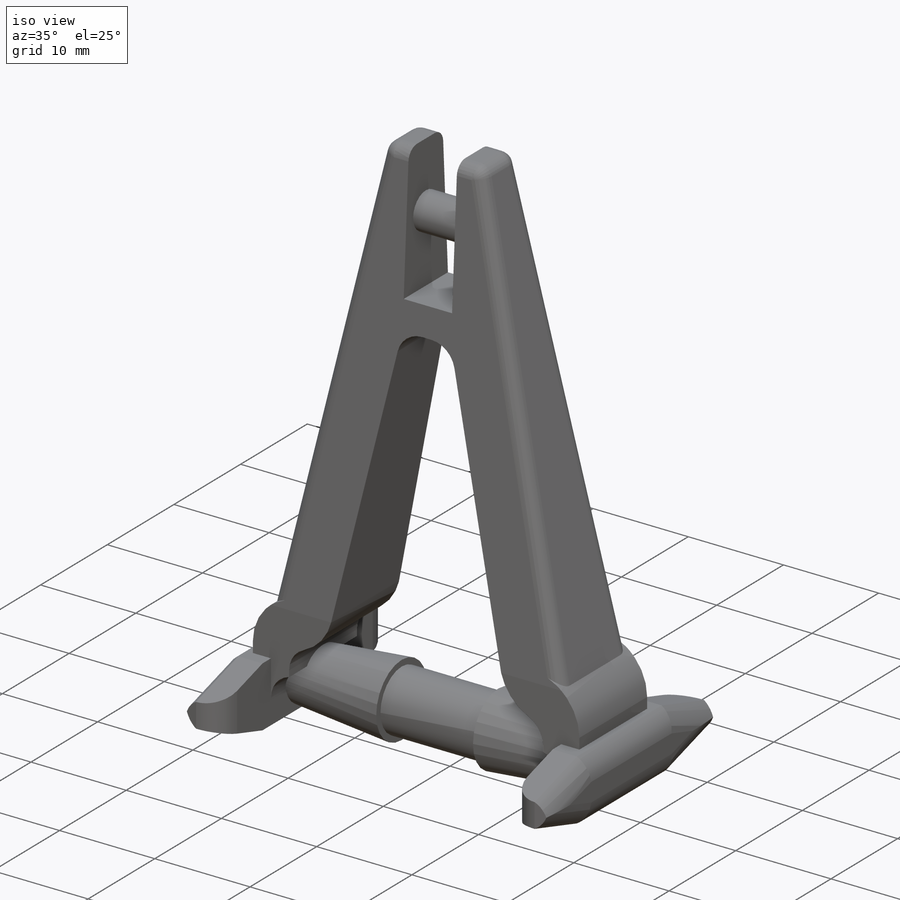
[diagram: iso view]
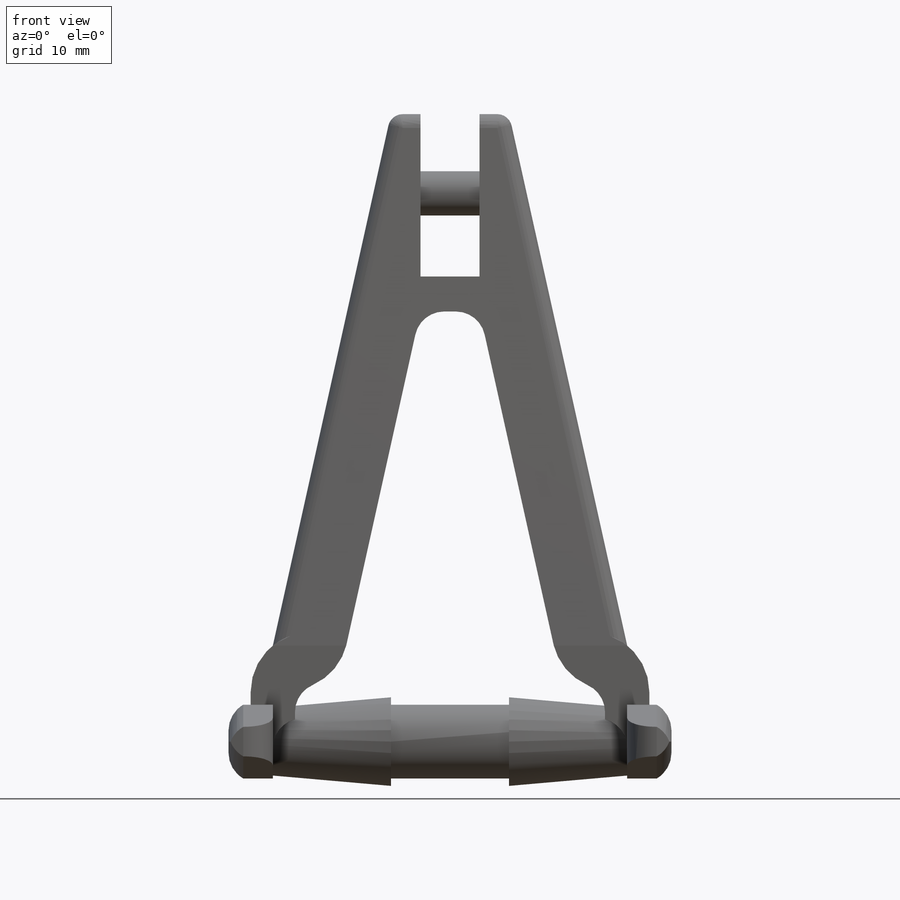
[diagram: front view]
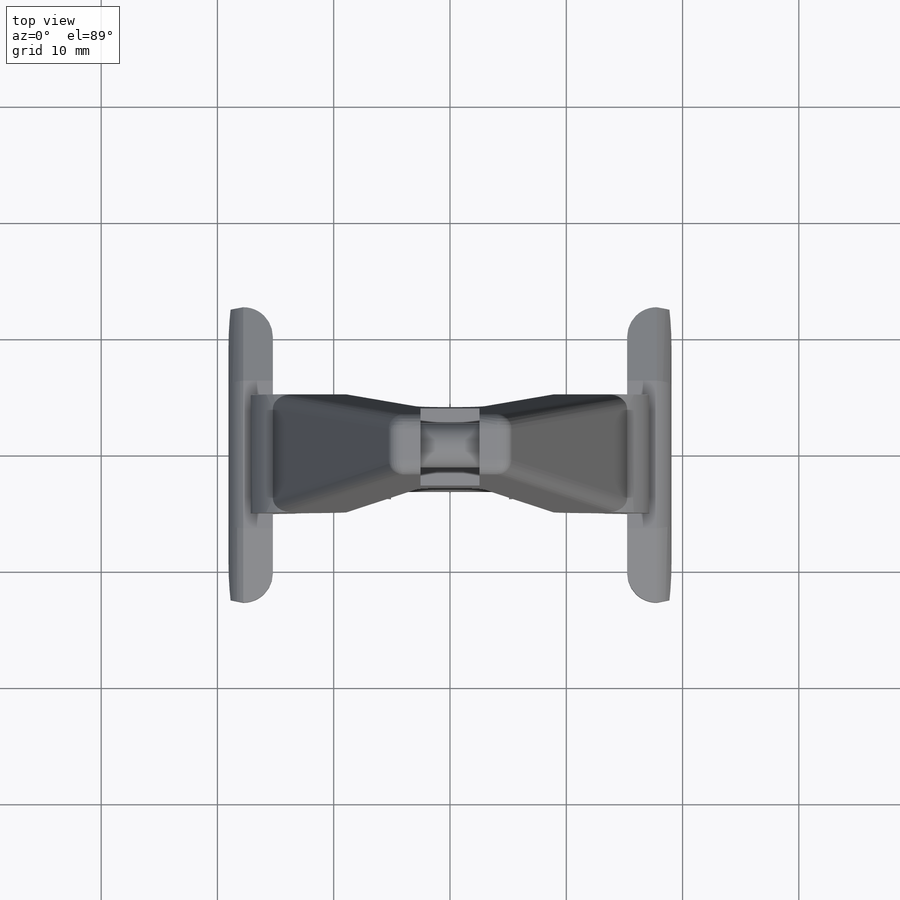
[diagram: top view]
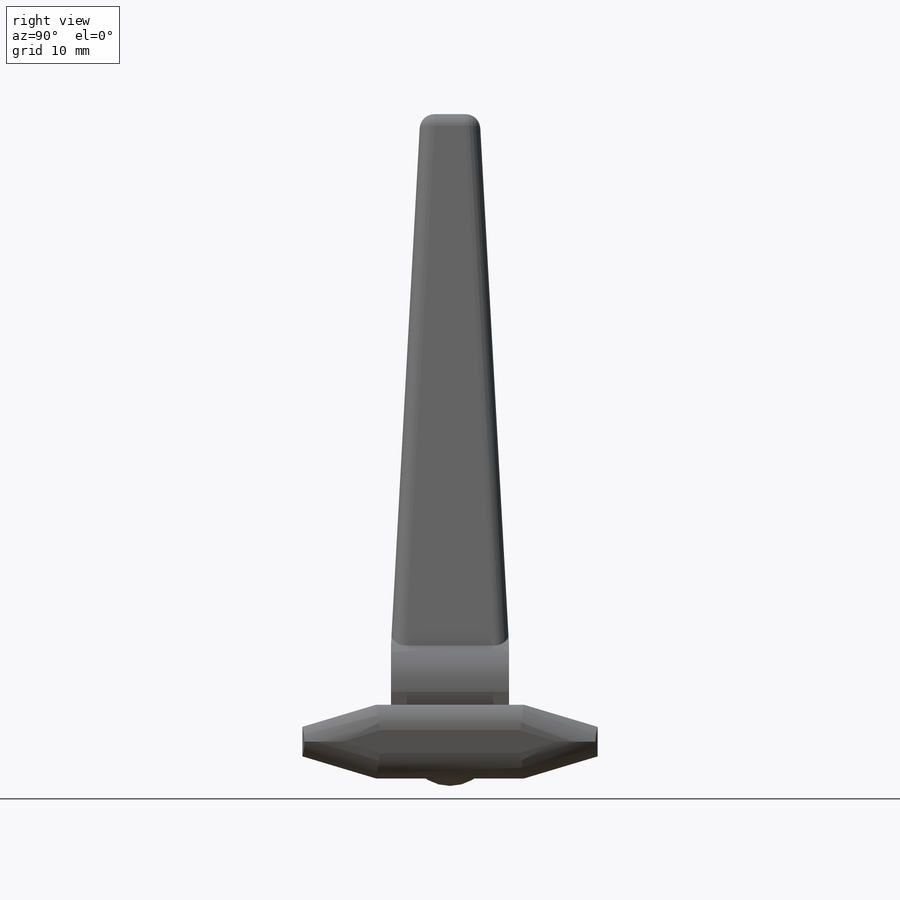
[diagram: right view]
SOLIDWORKS PART (.sldprt)
format: sldprt  version: not decoded by parser v0  size: 559,616 bytes
history: native  units: mm
features: sketch x8, fillet x8, extrude x6, cut_extrude x2, material x1, mirror x1, plane x1 (+13 scaffold rows collapsed)
feature tree (40):
  scaffold x13  (default folders/planes/origin — collapsed)
  material  "Material <not specified>"
  sketch  "Sketch1"  dims[D1=6.35mm]
  extrude  "Boss-Extrude1"  Depth=10.16mm
  sketch  "Sketch2"  dims[D1=7.62mm]
  extrude  "Boss-Extrude2"  Depth=12.7mm
  sketch  "Sketch3"  dims[D1=1.27mm D2=25.4mm D3=1.905mm D4=12.7mm]
  extrude  "Boss-Extrude3"  Depth=1.27mm
  fillet  "Fillet1"  Radius=2.54mm
  mirror  "Mirror1"
  fillet  "Fillet2"  Radius=2.54mm
  sketch  "Sketch4"  dims[D1=10.16mm D2=3.81mm]
  extrude  "Boss-Extrude4"  Depth=1.27mm
  sketch  "Sketch5"  dims[D1=10.16mm D2=5.08mm D3=45.72mm]
  extrude  "Boss-Extrude5"  Depth=10.16mm
  fillet  "Fillet3"  Radius=5.08mm
  fillet  "Fillet4"  Radius=2.54mm
  fillet  "Fillet5"  Radius=5.08mm
  plane  "Plane1"  Offset=25.4mm
  sketch  "Sketch6"  dims[D1=5.08mm]
  cut_extrude  "Cut-Extrude1"  [1 undecoded]
  fillet  "Fillet6"  Radius=1.27mm
  sketch  "Sketch8"  dims[D1=5.08mm D2=13.97mm]
  cut_extrude  "Cut-Extrude3"  Depth=10.16mm
  sketch  "Sketch9"  dims[D1=3.81mm D2=10.16mm]
  extrude  "Boss-Extrude6"  Depth=7.62mm
  fillet  "Fillet7"  Radius=1.27mm
  fillet  "Fillet8"  Radius=2.54mm
decode coverage: 23 of 25 modeling features carry decoded parameters
note: 1 parameter value undecoded
note: suppression state not decoded; provenance and decode notes live in map.json
